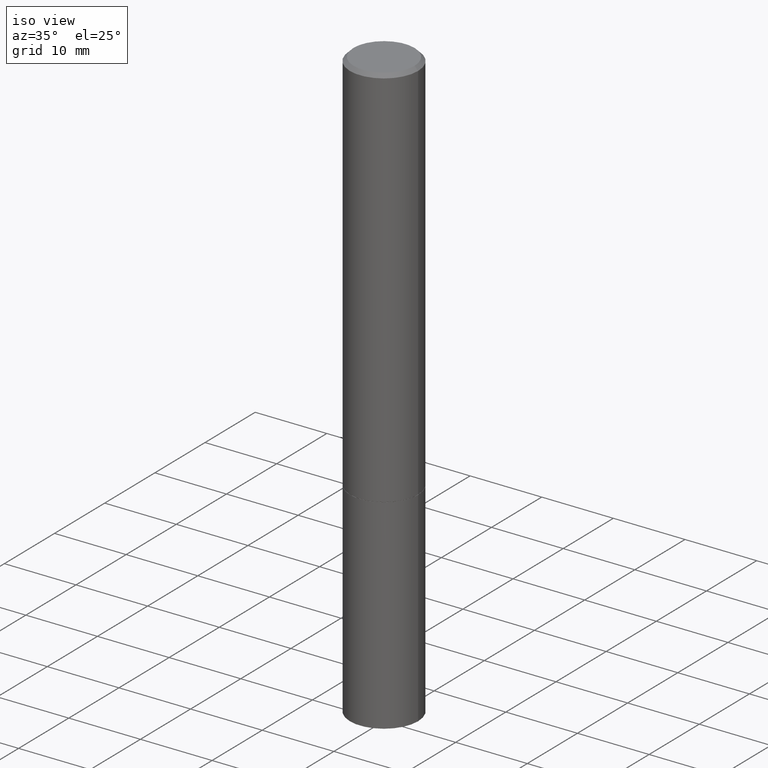
[diagram: clean part render]
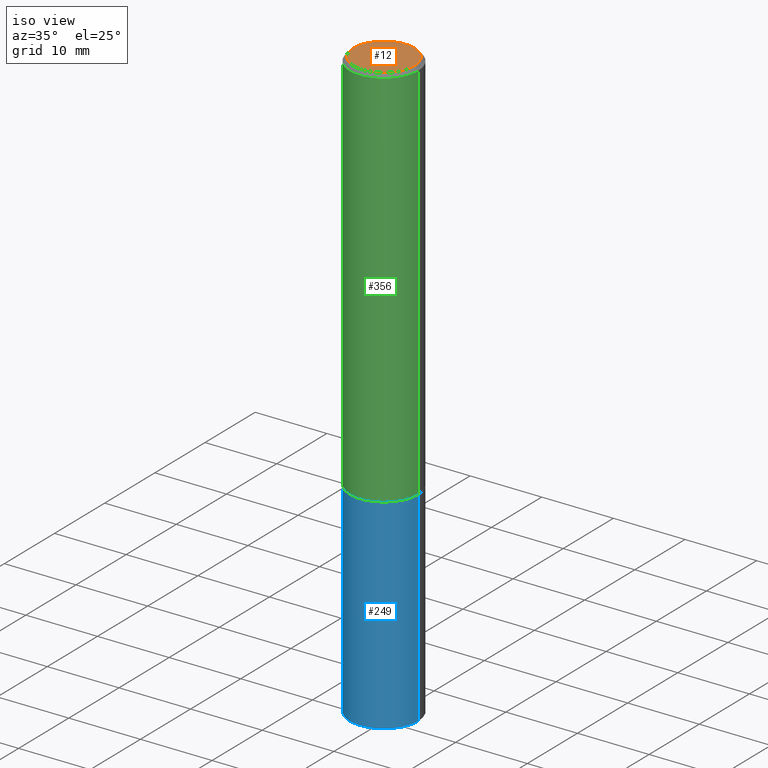
[diagram: same view with three faces highlighted in distinct colors, each labeled with its STEP entity id]
A machine part, iso view with three faces highlighted in distinct colors.
Their STEP definitions:

[orange] entity #12 — the highlighted planar face has unit normal (0, -0, -1).
#7 = DIRECTION ( 'NONE',  ( 1.000000000000000000, -6.982962677686265922E-15, 4.875936752492899929E-29 ) ) ;
#12 = ADVANCED_FACE ( 'NONE', ( #51 ), #189, .F. ) ;
#25 = CARTESIAN_POINT ( 'NONE',  ( 1.169646248512447820E-15, 0.1674999999999997602, -5.826888680111757675E-16 ) ) ;
#50 = ORIENTED_EDGE ( 'NONE', *, *, #141, .T. ) ;
#51 = FACE_OUTER_BOUND ( 'NONE', #309, .T. ) ;
#60 = DIRECTION ( 'NONE',  ( -2.445468806185136597E-29, 3.491481338843145583E-15, 1.000000000000000000 ) ) ;
#75 = CIRCLE ( 'NONE', #133, 0.1674999999999997602 ) ;
#119 = DIRECTION ( 'NONE',  ( -2.445468806185136597E-29, 3.491481338843145583E-15, 1.000000000000000000 ) ) ;
#133 = AXIS2_PLACEMENT_3D ( 'NONE', #317, #119, #232 ) ;
#141 = EDGE_CURVE ( 'NONE', #361, #253, #323, .T. ) ;
#189 = PLANE ( 'NONE',  #328 ) ;
#192 = AXIS2_PLACEMENT_3D ( 'NONE', #338, #60, #7 ) ;
#204 = CARTESIAN_POINT ( 'NONE',  ( -0.1674999999999997602, 1.204561061900878878E-15, 4.268512490092109750E-18 ) ) ;
#214 = EDGE_CURVE ( 'NONE', #253, #361, #75, .T. ) ;
#232 = DIRECTION ( 'NONE',  ( 1.000000000000000000, -6.982962677686265922E-15, 4.875936752492899929E-29 ) ) ;
#248 = ORIENTED_EDGE ( 'NONE', *, *, #214, .T. ) ;
#251 = DIRECTION ( 'NONE',  ( 2.438088387897960049E-29, -3.491481338843145188E-15, -1.000000000000000000 ) ) ;
#253 = VERTEX_POINT ( 'NONE', #321 ) ;
#309 = EDGE_LOOP ( 'NONE', ( #50, #248 ) ) ;
#317 = CARTESIAN_POINT ( 'NONE',  ( -1.043851414335219820E-46, 1.490343170380447200E-32, 4.268512490100411279E-18 ) ) ;
#321 = CARTESIAN_POINT ( 'NONE',  ( 0.1674999999999997602, -1.252653207992876711E-15, 4.268512490108880748E-18 ) ) ;
#323 = CIRCLE ( 'NONE', #192, 0.1674999999999997602 ) ;
#328 = AXIS2_PLACEMENT_3D ( 'NONE', #25, #251, #363 ) ;
#338 = CARTESIAN_POINT ( 'NONE',  ( -1.043851414335219820E-46, 1.490343170380447200E-32, 4.268512490100411279E-18 ) ) ;
#361 = VERTEX_POINT ( 'NONE', #204 ) ;
#363 = DIRECTION ( 'NONE',  ( -1.000000000000000000, 6.982962677686265922E-15, -4.876176775795935793E-29 ) ) ;

[blue] entity #249 — the highlighted cylindrical surface (partial cylindrical patch) has radius 4.7625 mm, axis along (-0, 0, 1).
#1 = DIRECTION ( 'NONE',  ( 1.000000000000000000, -6.982962677686266711E-15, 0.000000000000000000 ) ) ;
#11 = ORIENTED_EDGE ( 'NONE', *, *, #210, .T. ) ;
#14 = EDGE_CURVE ( 'NONE', #221, #358, #225, .T. ) ;
#23 = VERTEX_POINT ( 'NONE', #311 ) ;
#34 = LINE ( 'NONE', #144, #339 ) ;
#45 = EDGE_CURVE ( 'NONE', #23, #81, #113, .T. ) ;
#63 = CARTESIAN_POINT ( 'NONE',  ( -0.1875000000000000278, -8.051088468590765387E-15, -2.125000000000000000 ) ) ;
#81 = VERTEX_POINT ( 'NONE', #234 ) ;
#87 = DIRECTION ( 'NONE',  ( -2.445468806185136597E-29, 3.491481338843145583E-15, 1.000000000000000000 ) ) ;
#97 = CYLINDRICAL_SURFACE ( 'NONE', #193, 0.1875000000000000278 ) ;
#98 = DIRECTION ( 'NONE',  ( -2.445468806185136597E-29, 3.491481338843145583E-15, 1.000000000000000000 ) ) ;
#110 = ORIENTED_EDGE ( 'NONE', *, *, #278, .F. ) ;
#113 = CIRCLE ( 'NONE', #243, 0.1875000000000000278 ) ;
#122 = FACE_OUTER_BOUND ( 'NONE', #265, .T. ) ;
#144 = CARTESIAN_POINT ( 'NONE',  ( 0.1875000000000000278, -1.309305502066175008E-15, 9.142831454617381013E-30 ) ) ;
#152 = LINE ( 'NONE', #209, #171 ) ;
#171 = VECTOR ( 'NONE', #242, 39.37007874015748143 ) ;
#193 = AXIS2_PLACEMENT_3D ( 'NONE', #342, #98, #239 ) ;
#197 = DIRECTION ( 'NONE',  ( -2.445468806185136597E-29, 3.491481338843145583E-15, 1.000000000000000000 ) ) ;
#209 = CARTESIAN_POINT ( 'NONE',  ( -0.1875000000000000278, 1.332267629550188046E-15, -9.223003294227947991E-30 ) ) ;
#210 = EDGE_CURVE ( 'NONE', #81, #358, #34, .T. ) ;
#221 = VERTEX_POINT ( 'NONE', #63 ) ;
#224 = ORIENTED_EDGE ( 'NONE', *, *, #45, .T. ) ;
#225 = CIRCLE ( 'NONE', #313, 0.1875000000000000278 ) ;
#234 = CARTESIAN_POINT ( 'NONE',  ( 0.1875000000000000278, -1.265661985330639786E-14, -3.250000000000000000 ) ) ;
#239 = DIRECTION ( 'NONE',  ( 1.000000000000000000, -6.982962677686265922E-15, 4.876176775795935793E-29 ) ) ;
#242 = DIRECTION ( 'NONE',  ( -2.445468806185136877E-29, 3.491481338843145188E-15, 1.000000000000000000 ) ) ;
#243 = AXIS2_PLACEMENT_3D ( 'NONE', #255, #87, #288 ) ;
#249 = ADVANCED_FACE ( 'NONE', ( #122 ), #97, .T. ) ;
#255 = CARTESIAN_POINT ( 'NONE',  ( 7.947773620101693940E-29, -1.134731435124022443E-14, -3.250000000000000000 ) ) ;
#260 = DIRECTION ( 'NONE',  ( -2.445468806185136877E-29, 3.491481338843145188E-15, 1.000000000000000000 ) ) ;
#265 = EDGE_LOOP ( 'NONE', ( #110, #224, #11, #355 ) ) ;
#278 = EDGE_CURVE ( 'NONE', #23, #221, #152, .T. ) ;
#288 = DIRECTION ( 'NONE',  ( 1.000000000000000000, -6.982962677686261189E-15, 0.000000000000000000 ) ) ;
#311 = CARTESIAN_POINT ( 'NONE',  ( -0.1875000000000000278, -8.051088468590765387E-15, -3.250000000000000000 ) ) ;
#313 = AXIS2_PLACEMENT_3D ( 'NONE', #333, #197, #1 ) ;
#333 = CARTESIAN_POINT ( 'NONE',  ( 5.196621213143415268E-29, -7.419397845041683624E-15, -2.125000000000000000 ) ) ;
#339 = VECTOR ( 'NONE', #260, 39.37007874015748143 ) ;
#342 = CARTESIAN_POINT ( 'NONE',  ( 0.000000000000000000, 0.000000000000000000, 0.000000000000000000 ) ) ;
#344 = CARTESIAN_POINT ( 'NONE',  ( 0.1875000000000000278, -8.728703347107858632E-15, -2.125000000000000000 ) ) ;
#355 = ORIENTED_EDGE ( 'NONE', *, *, #14, .F. ) ;
#358 = VERTEX_POINT ( 'NONE', #344 ) ;

[green] entity #356 — the highlighted cylindrical surface (partial cylindrical patch) has radius 4.7625 mm, axis along (-0, 0, 1).
#5 = CARTESIAN_POINT ( 'NONE',  ( -0.1874999999999998890, 1.332267629550187060E-15, -9.223003294227942385E-30 ) ) ;
#8 = CARTESIAN_POINT ( 'NONE',  ( 0.000000000000000000, 0.000000000000000000, 0.000000000000000000 ) ) ;
#17 = EDGE_CURVE ( 'NONE', #277, #300, #337, .T. ) ;
#33 = CARTESIAN_POINT ( 'NONE',  ( 4.890937612370283668E-31, -6.982962677686305168E-17, -0.02000000000000004205 ) ) ;
#38 = CYLINDRICAL_SURFACE ( 'NONE', #218, 0.1874999999999998890 ) ;
#44 = CARTESIAN_POINT ( 'NONE',  ( -0.1875000000000000278, -2.410600365689662531E-15, -2.123999999999999666 ) ) ;
#62 = CARTESIAN_POINT ( 'NONE',  ( 0.1875000000000000278, -8.725211865769015625E-15, -2.123999999999999666 ) ) ;
#65 = CARTESIAN_POINT ( 'NONE',  ( 0.1874999999999998890, -1.309305502066174022E-15, 9.142831454617374006E-30 ) ) ;
#82 = EDGE_CURVE ( 'NONE', #300, #275, #155, .T. ) ;
#86 = DIRECTION ( 'NONE',  ( -2.445468806185136597E-29, 3.491481338843145583E-15, 1.000000000000000000 ) ) ;
#88 = VECTOR ( 'NONE', #324, 39.37007874015748143 ) ;
#90 = DIRECTION ( 'NONE',  ( -2.445468806185136877E-29, 3.491481338843145188E-15, 1.000000000000000000 ) ) ;
#108 = ORIENTED_EDGE ( 'NONE', *, *, #17, .F. ) ;
#129 = VERTEX_POINT ( 'NONE', #62 ) ;
#145 = AXIS2_PLACEMENT_3D ( 'NONE', #33, #86, #169 ) ;
#147 = DIRECTION ( 'NONE',  ( -2.445468806185136597E-29, 3.491481338843145583E-15, 1.000000000000000000 ) ) ;
#155 = CIRCLE ( 'NONE', #145, 0.1874999999999997502 ) ;
#169 = DIRECTION ( 'NONE',  ( 1.000000000000000000, -6.982962677686265133E-15, 0.000000000000000000 ) ) ;
#182 = FACE_OUTER_BOUND ( 'NONE', #280, .T. ) ;
#186 = ORIENTED_EDGE ( 'NONE', *, *, #304, .T. ) ;
#194 = CARTESIAN_POINT ( 'NONE',  ( 5.194175744337229665E-29, -7.415906363702840616E-15, -2.123999999999999666 ) ) ;
#199 = VECTOR ( 'NONE', #90, 39.37007874015748143 ) ;
#200 = AXIS2_PLACEMENT_3D ( 'NONE', #194, #295, #268 ) ;
#213 = CARTESIAN_POINT ( 'NONE',  ( -0.1874999999999997502, 1.239475875289309935E-15, -0.02000000000000004205 ) ) ;
#218 = AXIS2_PLACEMENT_3D ( 'NONE', #8, #147, #263 ) ;
#226 = ORIENTED_EDGE ( 'NONE', *, *, #237, .T. ) ;
#237 = EDGE_CURVE ( 'NONE', #277, #129, #289, .T. ) ;
#252 = ORIENTED_EDGE ( 'NONE', *, *, #82, .F. ) ;
#263 = DIRECTION ( 'NONE',  ( 1.000000000000000000, -6.982962677686265922E-15, 4.876176775795935793E-29 ) ) ;
#268 = DIRECTION ( 'NONE',  ( 1.000000000000000000, -6.982962677686266711E-15, 0.000000000000000000 ) ) ;
#275 = VERTEX_POINT ( 'NONE', #296 ) ;
#277 = VERTEX_POINT ( 'NONE', #44 ) ;
#280 = EDGE_LOOP ( 'NONE', ( #108, #226, #186, #252 ) ) ;
#289 = CIRCLE ( 'NONE', #200, 0.1875000000000000278 ) ;
#295 = DIRECTION ( 'NONE',  ( -2.445468806185136597E-29, 3.491481338843145583E-15, 1.000000000000000000 ) ) ;
#296 = CARTESIAN_POINT ( 'NONE',  ( 0.1874999999999997502, -1.356173001359023494E-15, -0.02000000000000004205 ) ) ;
#300 = VERTEX_POINT ( 'NONE', #213 ) ;
#304 = EDGE_CURVE ( 'NONE', #129, #275, #347, .T. ) ;
#324 = DIRECTION ( 'NONE',  ( -2.445468806185136877E-29, 3.491481338843145188E-15, 1.000000000000000000 ) ) ;
#337 = LINE ( 'NONE', #5, #199 ) ;
#347 = LINE ( 'NONE', #65, #88 ) ;
#356 = ADVANCED_FACE ( 'NONE', ( #182 ), #38, .T. ) ;